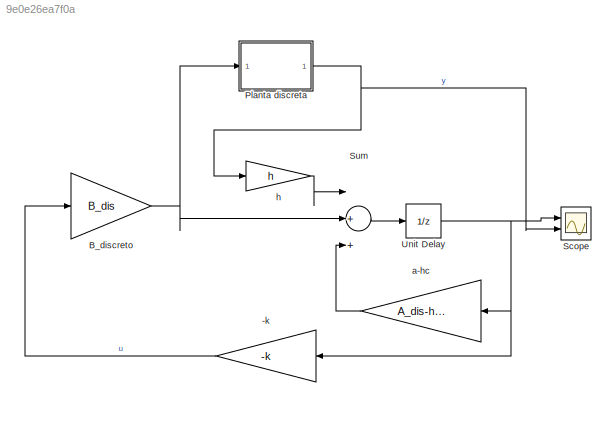
MODEL slx_9e0e26ea7f0a
KIND model
CONFIG AbsTol = auto
CONFIG FixedStep = auto
CONFIG MaxStep = auto
CONFIG MinStep = auto
CONFIG RelTol = 1e-3
CONFIG SampleTimeConstraint = Unconstrained
CONFIG Solver = VariableStepAuto
CONFIG SolverMode = Auto
CONFIG SolverName = VariableStepAuto
CONFIG StartTime = 0.0
CONFIG StopTime = 10.0
BLOCK [Gain] -k
  Gain = -k
  Multiplication = Matrix(K*u) (u vector)
  OutDataTypeStr = Inherit: Inherit via internal rule
  ParamDataTypeStr = Inherit: Inherit via internal rule
  SaturateOnIntegerOverflow = off
BLOCK [Gain] B_discreto
  Gain = B_dis
  Multiplication = Matrix(K*u) (u vector)
  OutDataTypeStr = Inherit: Inherit via internal rule
  ParamDataTypeStr = Inherit: Inherit via internal rule
  SaturateOnIntegerOverflow = off
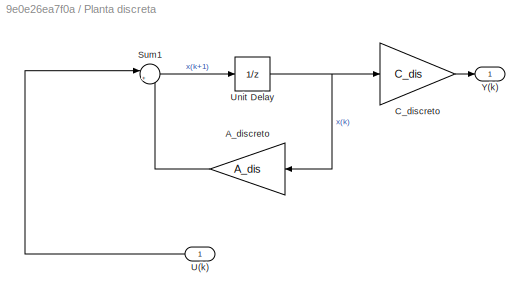
BLOCK [SubSystem] Planta discreta
  Ports = [1, 1]
  RequestExecContextInheritance = off
  Variant = off
BLOCK [Gain] Planta discreta/A_discreto
  Gain = A_dis
  Multiplication = Matrix(K*u) (u vector)
  OutDataTypeStr = Inherit: Inherit via internal rule
  ParamDataTypeStr = Inherit: Inherit via internal rule
  SaturateOnIntegerOverflow = off
BLOCK [Gain] Planta discreta/C_discreto
  Gain = C_dis
  Multiplication = Matrix(K*u) (u vector)
  OutDataTypeStr = Inherit: Inherit via internal rule
  ParamDataTypeStr = Inherit: Inherit via internal rule
  SaturateOnIntegerOverflow = off
BLOCK [Sum] Planta discreta/Sum1
  IconShape = round
  InputSameDT = off
  Inputs = |++
  OutDataTypeStr = Inherit: Inherit via internal rule
  Ports = [2, 1]
  SaturateOnIntegerOverflow = off
BLOCK [Inport] Planta discreta/U(k)
  IconDisplay = Port number
BLOCK [UnitDelay] Planta discreta/Unit Delay
  InitialCondition = [1;1]
  InputProcessing = Elements as channels (sample based)
  SampleTime = tm
BLOCK [Outport] Planta discreta/Y(k)
  IconDisplay = Port number
BLOCK [Scope] Scope
  NumInputPorts = 2
  Ports = [2]
  ScopeSpecificationString = Simulink.scopes.TimeScopeBlockCfg('CurrentConfiguration', extmgr.ConfigurationSet(extmgr.Configuration('Core','General UI',true),extmgr.Configuration('Core','Source UI',true),extmgr.Configuration('Sources','WiredSimulink',true),extmgr.Configuration('Visuals','Time Domain',true,'SerializedDisplays',{struct('MinYLimReal','-15.50889','MaxYLimReal','12.64613','YLabelReal','','MinYLimMag','0.00000','Ma...<+1378ch>
BLOCK [Sum] Sum
  InputSameDT = off
  Inputs = |+++
  OutDataTypeStr = Inherit: Inherit via internal rule
  Ports = [3, 1]
  SaturateOnIntegerOverflow = off
BLOCK [UnitDelay] Unit Delay
  InputProcessing = Elements as channels (sample based)
  SampleTime = tm
BLOCK [Gain] a-hc
  Gain = A_dis-h*C_dis
  Multiplication = Matrix(K*u) (u vector)
  OutDataTypeStr = Inherit: Inherit via internal rule
  ParamDataTypeStr = Inherit: Inherit via internal rule
  SaturateOnIntegerOverflow = off
BLOCK [Gain] h
  Gain = h
  Multiplication = Matrix(K*u) (u vector)
  OutDataTypeStr = Inherit: Inherit via internal rule
  ParamDataTypeStr = Inherit: Inherit via internal rule
  SaturateOnIntegerOverflow = off
LINE -k:1 -> B_discreto:1
NET B_discreto:1 -> Planta discreta:1, Sum:2
LINE Planta discreta/A_discreto:1 -> Planta discreta/Sum1:2
LINE Planta discreta/C_discreto:1 -> Planta discreta/Y(k):1
LINE Planta discreta/Sum1:1 -> Planta discreta/Unit Delay:1
LINE Planta discreta/U(k):1 -> Planta discreta/Sum1:1
NET Planta discreta/Unit Delay:1 -> Planta discreta/A_discreto:1, Planta discreta/C_discreto:1
NET Planta discreta:1 -> Scope:2, h:1
LINE Sum:1 -> Unit Delay:1
NET Unit Delay:1 -> -k:1, Scope:1, a-hc:1
LINE a-hc:1 -> Sum:3
LINE h:1 -> Sum:1
note: NET lines group one-source signal fan-out (src -> all destinations, sorted); 1:1 wires keep LINE
